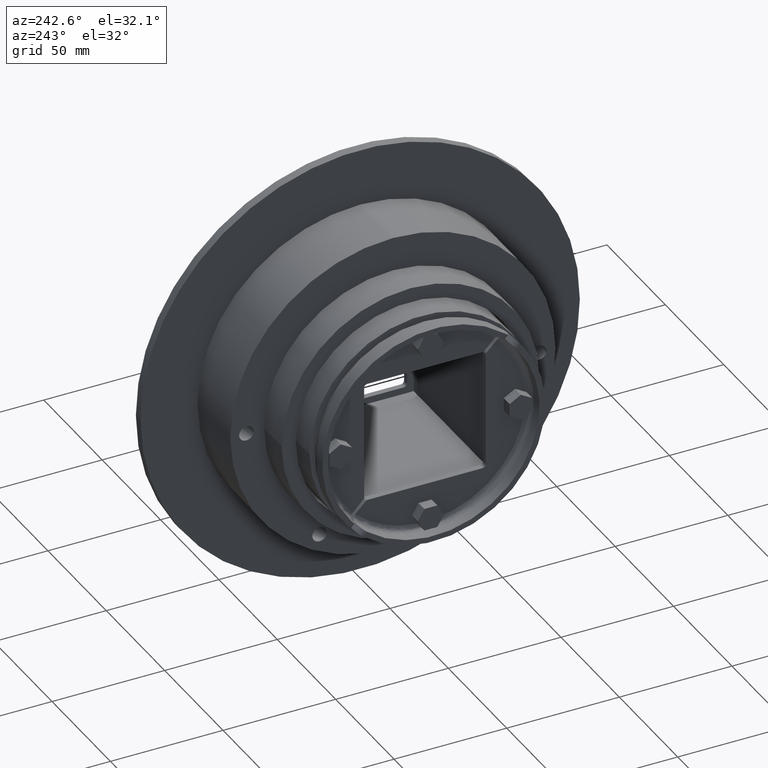
[diagram: clean part render]
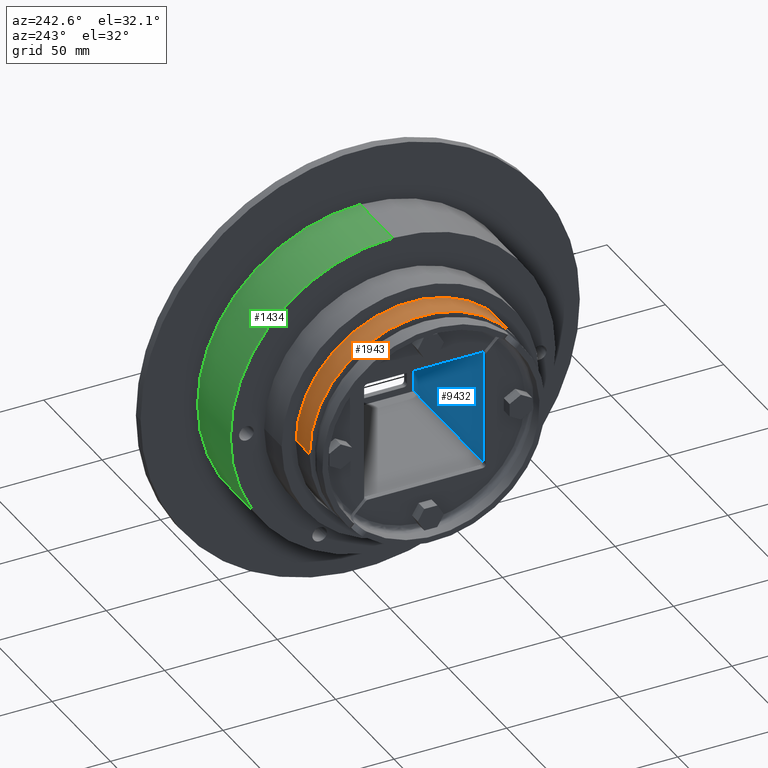
[diagram: same view with three faces highlighted in distinct colors, each labeled with its STEP entity id]
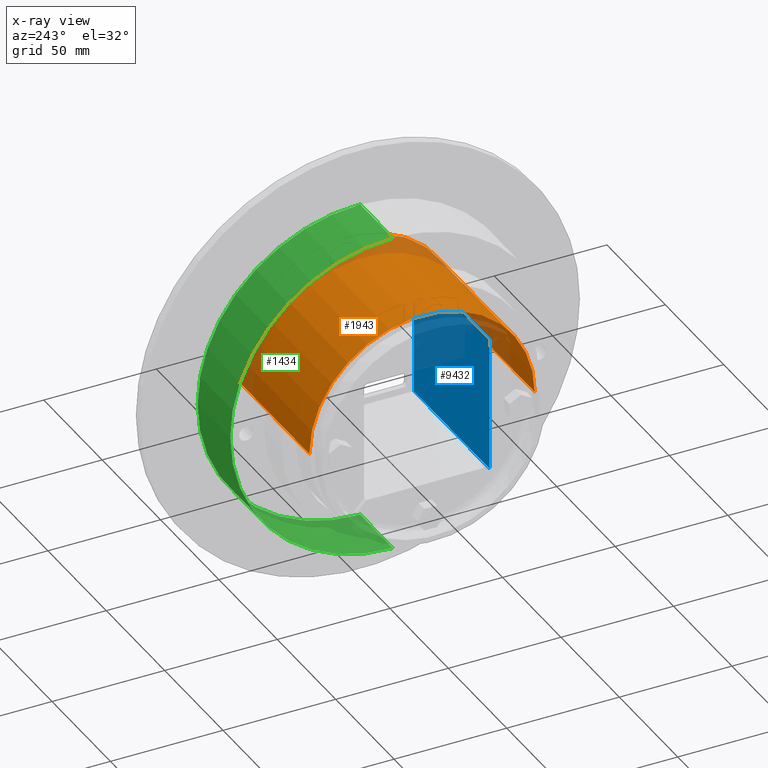
[diagram: x-ray of the same camera — body ghosted, the three highlighted faces saturated]
A machine part, auxiliary view with three faces highlighted in distinct colors.
The next image is the same camera in x-ray (body ghosted, the three faces saturated) — at least one of them is partly hidden behind the body in this view.
Their STEP definitions:

[orange] entity #1943 — the highlighted cylindrical surface (partial cylindrical patch) has radius 50 mm, axis along (-1, -0, 0).
#1875=CARTESIAN_POINT('',(0.0,0.0,0.0));
#1876=DIRECTION('',(-1.0,0.0,0.0));
#1877=DIRECTION('',(0.0,-1.0,0.0));
#1878=AXIS2_PLACEMENT_3D('',#1875,#1876,#1877);
#1879=CYLINDRICAL_SURFACE('',#1878,50.0);
#1880=CARTESIAN_POINT('',(0.0,-50.0,-6.123032E-015));
#1881=VERTEX_POINT('',#1880);
#1882=CARTESIAN_POINT('',(-65.0,-50.0,-6.123032E-015));
#1883=VERTEX_POINT('',#1882);
#1884=CARTESIAN_POINT('',(0.0,-50.0,-6.123032E-015));
#1885=DIRECTION('',(-1.0,0.0,0.0));
#1886=VECTOR('',#1885,65.0);
#1887=LINE('',#1884,#1886);
#1888=EDGE_CURVE('',#1881,#1883,#1887,.T.);
#1889=ORIENTED_EDGE('',*,*,#1888,.F.);
#1890=CARTESIAN_POINT('',(0.0,-35.881691445814930,34.821031274035114));
#1891=VERTEX_POINT('',#1890);
#1892=CARTESIAN_POINT('',(0.0,0.0,0.0));
#1893=DIRECTION('',(-1.0,0.0,0.0));
#1894=DIRECTION('',(0.0,-1.0,0.0));
#1895=AXIS2_PLACEMENT_3D('',#1892,#1893,#1894);
#1896=CIRCLE('',#1895,50.0);
#1897=EDGE_CURVE('',#1881,#1891,#1896,.T.);
#1898=ORIENTED_EDGE('',*,*,#1897,.T.);
#1899=CARTESIAN_POINT('',(0.0,-34.821031274035114,35.881691445814937));
#1900=VERTEX_POINT('',#1899);
#1901=CARTESIAN_POINT('',(0.0,0.0,0.0));
#1902=DIRECTION('',(-1.0,0.0,0.0));
#1903=DIRECTION('',(0.0,-1.0,0.0));
#1904=AXIS2_PLACEMENT_3D('',#1901,#1902,#1903);
#1905=CIRCLE('',#1904,50.0);
#1906=EDGE_CURVE('',#1891,#1900,#1905,.T.);
#1907=ORIENTED_EDGE('',*,*,#1906,.T.);
#1908=CARTESIAN_POINT('',(0.0,50.0,6.123032E-015));
#1909=VERTEX_POINT('',#1908);
#1910=CARTESIAN_POINT('',(0.0,0.0,0.0));
#1911=DIRECTION('',(-1.0,0.0,0.0));
#1912=DIRECTION('',(0.0,-1.0,0.0));
#1913=AXIS2_PLACEMENT_3D('',#1910,#1911,#1912);
#1914=CIRCLE('',#1913,50.0);
#1915=EDGE_CURVE('',#1900,#1909,#1914,.T.);
#1916=ORIENTED_EDGE('',*,*,#1915,.T.);
#1917=CARTESIAN_POINT('',(-65.0,50.0,6.123032E-015));
#1918=VERTEX_POINT('',#1917);
#1919=CARTESIAN_POINT('',(-65.0,50.0,6.123032E-015));
#1920=DIRECTION('',(1.0,0.0,0.0));
#1921=VECTOR('',#1920,65.0);
#1922=LINE('',#1919,#1921);
#1923=EDGE_CURVE('',#1918,#1909,#1922,.T.);
#1924=ORIENTED_EDGE('',*,*,#1923,.F.);
#1925=CARTESIAN_POINT('',(-65.000000000000014,-34.821031274035114,35.881691445814937));
#1926=VERTEX_POINT('',#1925);
#1927=CARTESIAN_POINT('',(-65.0,0.0,0.0));
#1928=DIRECTION('',(1.0,0.0,0.0));
#1929=DIRECTION('',(0.0,-1.0,0.0));
#1930=AXIS2_PLACEMENT_3D('',#1927,#1928,#1929);
#1931=CIRCLE('',#1930,50.0);
#1932=EDGE_CURVE('',#1918,#1926,#1931,.T.);
#1933=ORIENTED_EDGE('',*,*,#1932,.T.);
#1934=CARTESIAN_POINT('',(-65.0,0.0,0.0));
#1935=DIRECTION('',(1.0,0.0,0.0));
#1936=DIRECTION('',(0.0,-1.0,0.0));
#1937=AXIS2_PLACEMENT_3D('',#1934,#1935,#1936);
#1938=CIRCLE('',#1937,50.0);
#1939=EDGE_CURVE('',#1926,#1883,#1938,.T.);
#1940=ORIENTED_EDGE('',*,*,#1939,.T.);
#1941=EDGE_LOOP('',(#1889,#1898,#1907,#1916,#1924,#1933,#1940));
#1942=FACE_OUTER_BOUND('',#1941,.T.);
#1943=ADVANCED_FACE('',(#1942),#1879,.T.);

[blue] entity #9432 — the highlighted planar face has unit normal (0, -1, 0).
#7158=CARTESIAN_POINT('',(-65.000000000000014,-30.0,28.939339828220184));
#7159=VERTEX_POINT('',#7158);
#7366=CARTESIAN_POINT('',(-65.0,-30.0,-30.0));
#7367=VERTEX_POINT('',#7366);
#7368=CARTESIAN_POINT('',(-65.000000000000014,-30.0,28.939339828220184));
#7369=DIRECTION('',(0.0,0.0,-1.0));
#7370=VECTOR('',#7369,58.939339828220184);
#7371=LINE('',#7368,#7370);
#7372=EDGE_CURVE('',#7159,#7367,#7371,.T.);
#7653=CARTESIAN_POINT('',(-65.0,-30.0,30.0));
#7654=VERTEX_POINT('',#7653);
#7661=CARTESIAN_POINT('',(-65.0,-30.0,30.0));
#7662=DIRECTION('',(0.0,0.0,-1.0));
#7663=VECTOR('',#7662,1.060660171779816);
#7664=LINE('',#7661,#7663);
#7665=EDGE_CURVE('',#7654,#7159,#7664,.T.);
#8230=CARTESIAN_POINT('',(0.0,-30.0,28.939339828220170));
#8231=VERTEX_POINT('',#8230);
#8851=CARTESIAN_POINT('',(0.0,-30.0,-30.0));
#8852=VERTEX_POINT('',#8851);
#8859=CARTESIAN_POINT('',(0.0,-30.0,-30.0));
#8860=DIRECTION('',(0.0,0.0,1.0));
#8861=VECTOR('',#8860,58.939339828220170);
#8862=LINE('',#8859,#8861);
#8863=EDGE_CURVE('',#8852,#8231,#8862,.T.);
#9035=CARTESIAN_POINT('',(0.0,-30.0,30.0));
#9036=VERTEX_POINT('',#9035);
#9037=CARTESIAN_POINT('',(0.0,-30.0,28.939339828220170));
#9038=DIRECTION('',(0.0,0.0,1.0));
#9039=VECTOR('',#9038,1.060660171779830);
#9040=LINE('',#9037,#9039);
#9041=EDGE_CURVE('',#8231,#9036,#9040,.T.);
#9409=CARTESIAN_POINT('',(0.0,-30.0,30.0));
#9410=DIRECTION('',(0.0,-1.0,0.0));
#9411=DIRECTION('',(0.0,0.0,-1.0));
#9412=AXIS2_PLACEMENT_3D('',#9409,#9410,#9411);
#9413=PLANE('',#9412);
#9414=ORIENTED_EDGE('',*,*,#7665,.F.);
#9415=CARTESIAN_POINT('',(0.0,-30.0,30.0));
#9416=DIRECTION('',(-1.0,0.0,0.0));
#9417=VECTOR('',#9416,65.0);
#9418=LINE('',#9415,#9417);
#9419=EDGE_CURVE('',#9036,#7654,#9418,.T.);
#9420=ORIENTED_EDGE('',*,*,#9419,.F.);
#9421=ORIENTED_EDGE('',*,*,#9041,.F.);
#9422=ORIENTED_EDGE('',*,*,#8863,.F.);
#9423=CARTESIAN_POINT('',(0.0,-30.0,-30.0));
#9424=DIRECTION('',(-1.0,0.0,0.0));
#9425=VECTOR('',#9424,65.0);
#9426=LINE('',#9423,#9425);
#9427=EDGE_CURVE('',#8852,#7367,#9426,.T.);
#9428=ORIENTED_EDGE('',*,*,#9427,.T.);
#9429=ORIENTED_EDGE('',*,*,#7372,.F.);
#9430=EDGE_LOOP('',(#9414,#9420,#9421,#9422,#9428,#9429));
#9431=FACE_OUTER_BOUND('',#9430,.T.);
#9432=ADVANCED_FACE('',(#9431),#9413,.F.);

[green] entity #1434 — the highlighted cylindrical surface (partial cylindrical patch) has radius 72.15 mm, axis along (-1, 0, 0).
#416=CARTESIAN_POINT('',(4.0,8.835535E-015,72.150000000000006));
#417=VERTEX_POINT('',#416);
#418=CARTESIAN_POINT('',(32.0,8.835535E-015,72.150000000000006));
#419=VERTEX_POINT('',#418);
#420=CARTESIAN_POINT('',(4.0,8.835535E-015,72.150000000000006));
#421=DIRECTION('',(1.0,0.0,0.0));
#422=VECTOR('',#421,28.0);
#423=LINE('',#420,#422);
#424=EDGE_CURVE('',#417,#419,#423,.T.);
#426=CARTESIAN_POINT('',(4.0,8.835535E-015,-72.150000000000006));
#427=VERTEX_POINT('',#426);
#435=CARTESIAN_POINT('',(32.0,8.835535E-015,-72.150000000000006));
#436=VERTEX_POINT('',#435);
#437=CARTESIAN_POINT('',(32.0,8.835535E-015,-72.150000000000006));
#438=DIRECTION('',(-1.0,0.0,0.0));
#439=VECTOR('',#438,28.0);
#440=LINE('',#437,#439);
#441=EDGE_CURVE('',#436,#427,#440,.T.);
#1215=CARTESIAN_POINT('',(4.0,0.0,0.0));
#1216=DIRECTION('',(-1.0,0.0,0.0));
#1217=DIRECTION('',(0.0,0.0,1.0));
#1218=AXIS2_PLACEMENT_3D('',#1215,#1216,#1217);
#1219=CIRCLE('',#1218,72.150000000000006);
#1220=EDGE_CURVE('',#417,#427,#1219,.T.);
#1390=CARTESIAN_POINT('',(32.0,0.0,0.0));
#1391=DIRECTION('',(-1.0,0.0,0.0));
#1392=DIRECTION('',(0.0,0.0,1.0));
#1393=AXIS2_PLACEMENT_3D('',#1390,#1391,#1392);
#1394=CIRCLE('',#1393,72.150000000000006);
#1395=EDGE_CURVE('',#419,#436,#1394,.T.);
#1423=CARTESIAN_POINT('',(4.0,0.0,0.0));
#1424=DIRECTION('',(1.0,0.0,0.0));
#1425=DIRECTION('',(0.0,0.0,1.0));
#1426=AXIS2_PLACEMENT_3D('',#1423,#1424,#1425);
#1427=CYLINDRICAL_SURFACE('',#1426,72.150000000000006);
#1428=ORIENTED_EDGE('',*,*,#424,.T.);
#1429=ORIENTED_EDGE('',*,*,#1395,.T.);
#1430=ORIENTED_EDGE('',*,*,#441,.T.);
#1431=ORIENTED_EDGE('',*,*,#1220,.F.);
#1432=EDGE_LOOP('',(#1428,#1429,#1430,#1431));
#1433=FACE_OUTER_BOUND('',#1432,.T.);
#1434=ADVANCED_FACE('',(#1433),#1427,.T.);